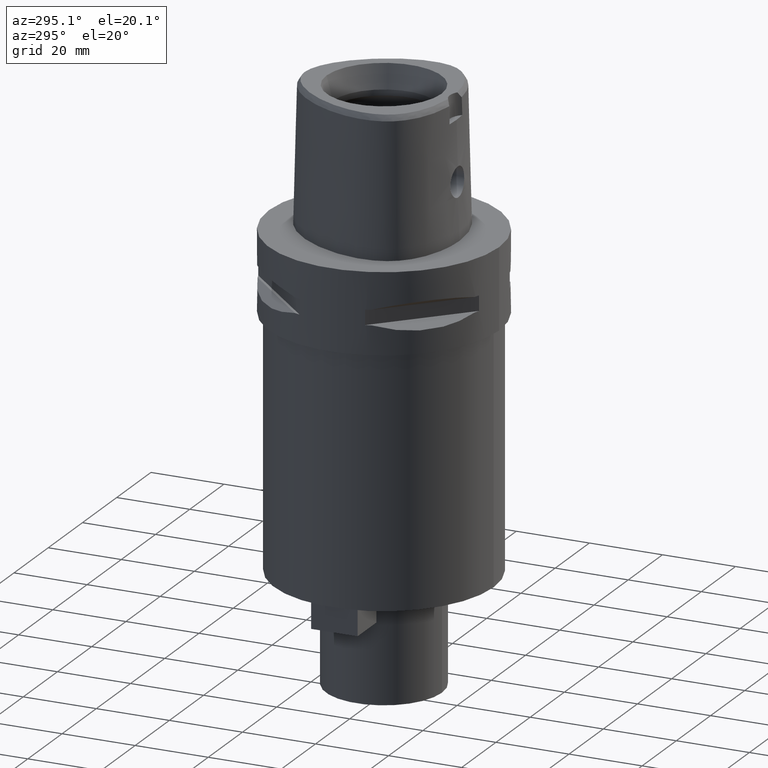
[diagram: clean part render]
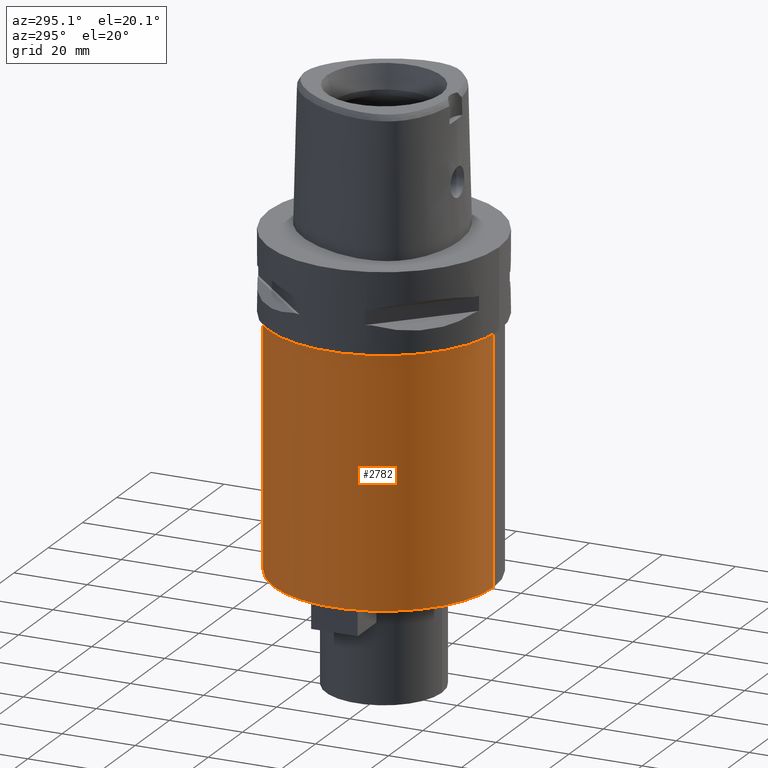
[diagram: same view with one face highlighted and labeled with its STEP entity id]
A machine part, auxiliary view. The second image highlights one B-rep face of the part: STEP entity #2782.
In plain terms, the highlighted cylindrical surface (partial cylindrical patch) has radius 30 mm, axis along (0, 0, -1).
Its self-contained STEP definition (entity closure, byte-faithful):
#581=CARTESIAN_POINT('',(0.E0,0.E0,-2.25E1));
#582=DIRECTION('',(0.E0,0.E0,-1.E0));
#583=DIRECTION('',(0.E0,-1.E0,0.E0));
#584=AXIS2_PLACEMENT_3D('',#581,#582,#583);
#604=DIRECTION('',(0.E0,0.E0,-1.E0));
#605=VECTOR('',#604,6.75E1);
#606=CARTESIAN_POINT('',(0.E0,3.E1,-2.25E1));
#607=LINE('',#606,#605);
#611=DIRECTION('',(0.E0,0.E0,-1.E0));
#612=VECTOR('',#611,6.75E1);
#613=CARTESIAN_POINT('',(0.E0,-3.E1,-2.25E1));
#614=LINE('',#613,#612);
#626=CARTESIAN_POINT('',(0.E0,1.298125607096E-14,-9.E1));
#627=DIRECTION('',(0.E0,0.E0,1.E0));
#628=DIRECTION('',(0.E0,1.E0,0.E0));
#629=AXIS2_PLACEMENT_3D('',#626,#627,#628);
#1796=CARTESIAN_POINT('',(0.E0,3.E1,-2.25E1));
#1797=VERTEX_POINT('',#1796);
#1798=CARTESIAN_POINT('',(0.E0,-3.E1,-2.25E1));
#1799=VERTEX_POINT('',#1798);
#1800=CARTESIAN_POINT('',(0.E0,3.E1,-9.E1));
#1801=VERTEX_POINT('',#1800);
#1802=CARTESIAN_POINT('',(0.E0,-3.E1,-9.E1));
#1803=VERTEX_POINT('',#1802);
#2770=CARTESIAN_POINT('',(0.E0,1.298125607096E-14,6.E0));
#2771=DIRECTION('',(0.E0,0.E0,-1.E0));
#2772=DIRECTION('',(0.E0,-1.E0,0.E0));
#2773=AXIS2_PLACEMENT_3D('',#2770,#2771,#2772);
#2774=CYLINDRICAL_SURFACE('',#2773,3.E1);
#2775=ORIENTED_EDGE('',*,*,#2760,.F.);
#2776=ORIENTED_EDGE('',*,*,#2737,.F.);
#2777=ORIENTED_EDGE('',*,*,#2764,.T.);
#2779=ORIENTED_EDGE('',*,*,#2778,.F.);
#2780=EDGE_LOOP('',(#2775,#2776,#2777,#2779));
#2781=FACE_OUTER_BOUND('',#2780,.F.);
#585=CIRCLE('',#584,3.E1);
#630=CIRCLE('',#629,3.E1);
#2737=EDGE_CURVE('',#1799,#1797,#585,.T.);
#2760=EDGE_CURVE('',#1797,#1801,#607,.T.);
#2764=EDGE_CURVE('',#1799,#1803,#614,.T.);
#2778=EDGE_CURVE('',#1801,#1803,#630,.T.);
#2782=ADVANCED_FACE('',(#2781),#2774,.T.);